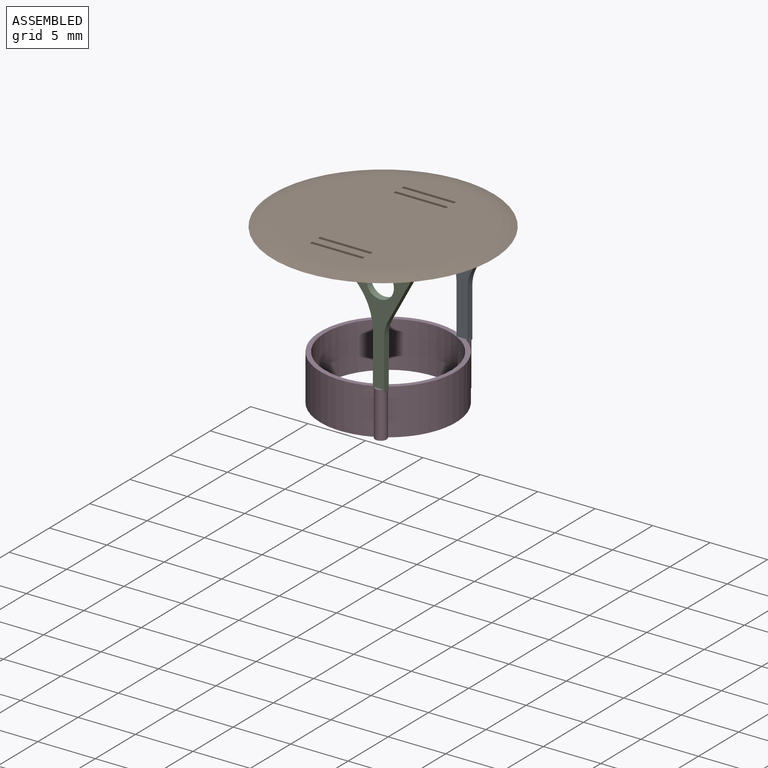
[diagram: assembled view]
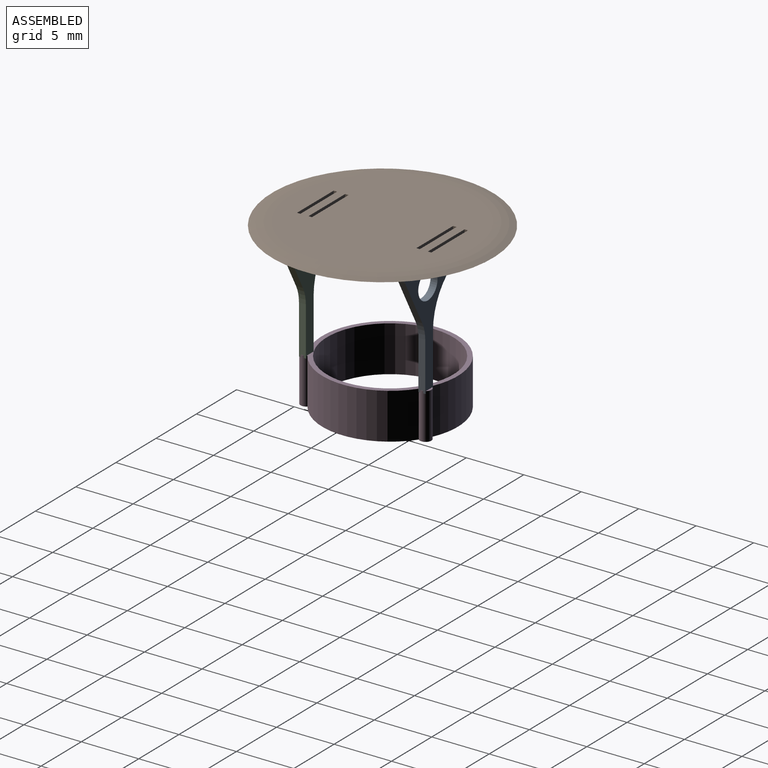
[diagram: assembled view, second angle]
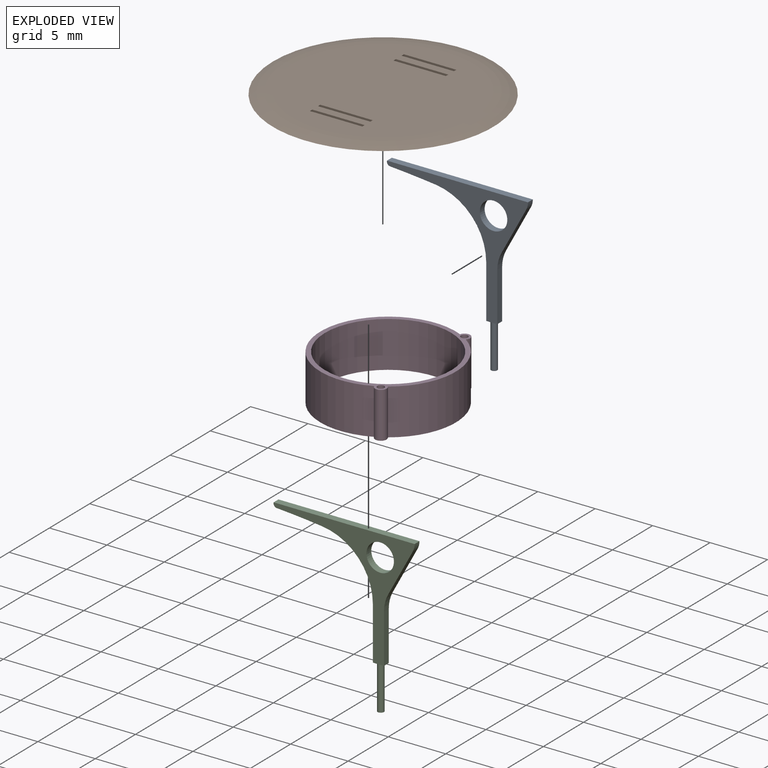
[diagram: exploded view]
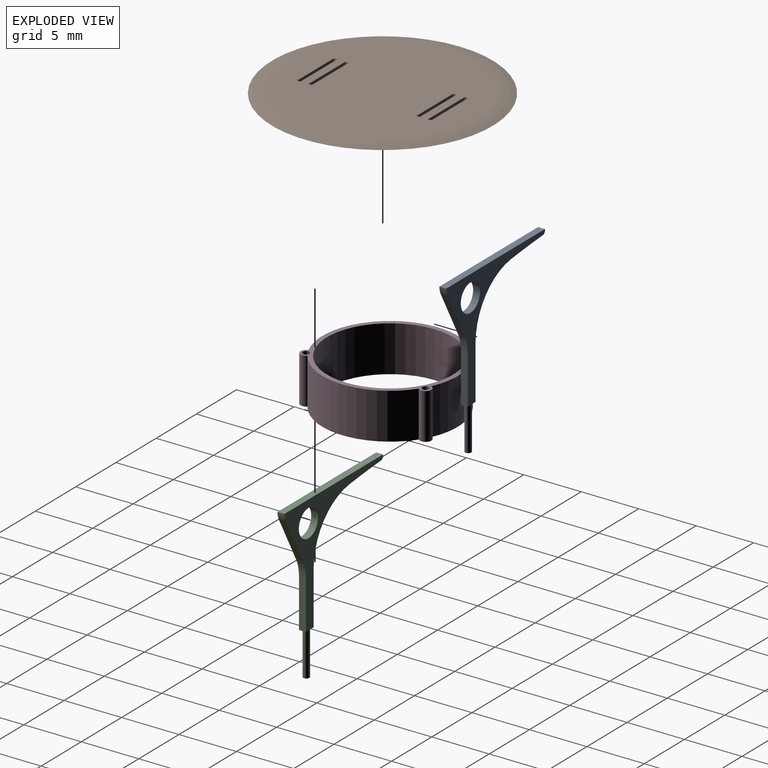
[diagram: exploded view, second angle]
ASSEMBLY  parts=4 mates=3
PART A: 15 faces, bbox 12.3x0.6x14.1 mm
  f0: plane 4.58x0.6mm, normal (-1,0,0), area 2.7mm2, adj f1,f9,f11,f12
  f1: plane 0.96x0.6mm, normal (0,0,-1), area 0.3mm2, adj f0,f2,f11,f12,f13
  f2: plane 4.27x0.6mm, normal (1,0,0), area 2.6mm2, adj f1,f3,f11,f12
  f3: cylinder r=3mm len=1.43mm, axis (0,1,0), area 0.9mm2, adj f2,f4,f11,f12
  f4: plane 3.96x2.15mm, normal (0.88,0,-0.48), area 2.7mm2, adj f3,f5,f11,f12
  f5: cylinder r=1.34mm len=0.64mm, axis (0,1,0), area 0.4mm2, adj f4,f6,f11,f12
  f6: plane 12.27x0.6mm, normal (0,0,1), area 7.4mm2, adj f5,f7,f11,f12
  f7: cylinder r=0.3mm len=0.6mm, axis (0,1,0), area 0.3mm2, adj f6,f8,f11,f12
  f8: cylinder r=80.26mm len=3.96mm, axis (0,1,0), area 2.4mm2, adj f7,f9,f11,f12
  f9: cylinder r=5mm len=4.96mm, axis (0,1,0), area 4.4mm2, adj f0,f8,f11,f12
  f10: cylinder r=1.2mm len=2.39mm, axis (0,1,0), area 4.5mm2, adj f11,f12
  f11: plane 12.28x10.3mm, normal (0,-1,0), area 23.8mm2, adj f0,f1,f2,f3,f4,f5,f6,f7
  f12: plane 12.28x10.3mm, normal (0,1,0), area 23.8mm2, adj f0,f1,f2,f3,f4,f5,f6,f7
  f13: cylinder r=0.27mm len=3.8mm, axis (0,0,1), area 6.5mm2, adj f1,f14
  f14: plane 0.55x0.55mm, normal (0,0,-1), area 0.2mm2, adj f13
PART B: 19 faces, bbox 24.8x24.8x1.5 mm
  f0: plane 4.56x0.3mm, normal (0,1,0), area 1.4mm2, adj f1,f15,f16,f17
  f1: plane 0.3x0.3mm, normal (1,0,0), area 0.1mm2, adj f0,f2,f16,f17
  f2: plane 4.56x0.3mm, normal (0,-1,0), area 1.4mm2, adj f1,f15,f16,f17
  f3: plane 4.56x0.3mm, normal (0,1,0), area 1.4mm2, adj f4,f12,f16,f17
  f4: plane 0.3x0.3mm, normal (1,0,0), area 0.1mm2, adj f3,f5,f16,f17
  f5: plane 4.56x0.3mm, normal (0,-1,0), area 1.4mm2, adj f4,f12,f16,f17
  f6: plane 0.3x0.3mm, normal (1,0,0), area 0.1mm2, adj f7,f13,f16,f17
  f7: plane 4.56x0.3mm, normal (0,-1,0), area 1.4mm2, adj f6,f8,f16,f17
  f8: plane 0.3x0.3mm, normal (-1,0,0), area 0.1mm2, adj f7,f13,f16,f17
  f9: plane 0.3x0.3mm, normal (1,0,0), area 0.1mm2, adj f10,f14,f16,f17
  f10: plane 4.56x0.3mm, normal (0,-1,0), area 1.4mm2, adj f9,f11,f16,f17
  f11: plane 0.3x0.3mm, normal (-1,0,0), area 0.1mm2, adj f10,f14,f16,f17
  f12: plane 0.3x0.3mm, normal (-1,0,0), area 0.1mm2, adj f3,f5,f16,f17
  f13: plane 4.56x0.3mm, normal (0,1,0), area 1.4mm2, adj f6,f8,f16,f17
  f14: plane 4.56x0.3mm, normal (0,1,0), area 1.4mm2, adj f9,f11,f16,f17
  f15: plane 0.3x0.3mm, normal (-1,0,0), area 0.1mm2, adj f0,f2,f16,f17
  f16: plane 19.21x19.21mm, normal (0,0,1), area 284.3mm2, adj f0,f1,f2,f3,f4,f5,f6,f7
  f17: plane 15.8x15.8mm, normal (0,0,-1), area 190.5mm2, adj f0,f1,f2,f3,f4,f5,f6,f7
  f18: torus R=7.9mm, axis (0,0,-1), area 95.8mm2, adj f16,f17
PART C: same geometry as A
PART D: 9 faces, bbox 11.8x11.8x4 mm
  f0: cylinder r=5.9mm len=11.8mm, axis (0,0,-1), area 95mm2, adj f1,f6,f7,f8
  f1: cylinder r=0.5mm len=4mm, axis (0,0,-1), area 7.3mm2, adj f0,f2,f7,f8
  f2: cylinder r=5.9mm len=9.7mm, axis (0,0,-1), area 45.5mm2, adj f1,f6,f7,f8
  f3: cylinder r=5.5mm len=11mm, axis (0,0,-1), area 138.2mm2, adj f7,f8
  f4: cylinder r=0.3mm len=4mm, axis (0,0,-1), area 7.7mm2, adj f7,f8
  f5: cylinder r=0.3mm len=4mm, axis (0,0,-1), area 7.7mm2, adj f7,f8
  f6: cylinder r=0.5mm len=4mm, axis (0,0,-1), area 7.3mm2, adj f0,f2,f7,f8
  f7: plane 11.8x11.8mm, normal (0,0,1), area 14.7mm2, adj f0,f1,f2,f3,f4,f5,f6
  f8: plane 11.8x11.8mm, normal (0,0,-1), area 14.7mm2, adj f0,f1,f2,f3,f4,f5,f6
PLACE A t=(11.34,13.13,11.68)mm
PLACE B rot(axis=(0,1,0),180deg) t=(-0.14,2.31,38.23)mm
PLACE C t=(11.34,2.74,11.68)mm
PLACE D t=(9.54,6.11,3.83)mm
MATE fastened D.f4 <-> A.f13  axis (0,0,-1) through (12.65,12.83,3.83)mm
MATE fastened B.f16 <-> A.f6  axis (0,0,-1) through (9.67,12.53,17.93)mm
MATE fastened C.f13 <-> D.f1  axis (0,0,-1) through (12.65,2.44,3.83)mm
